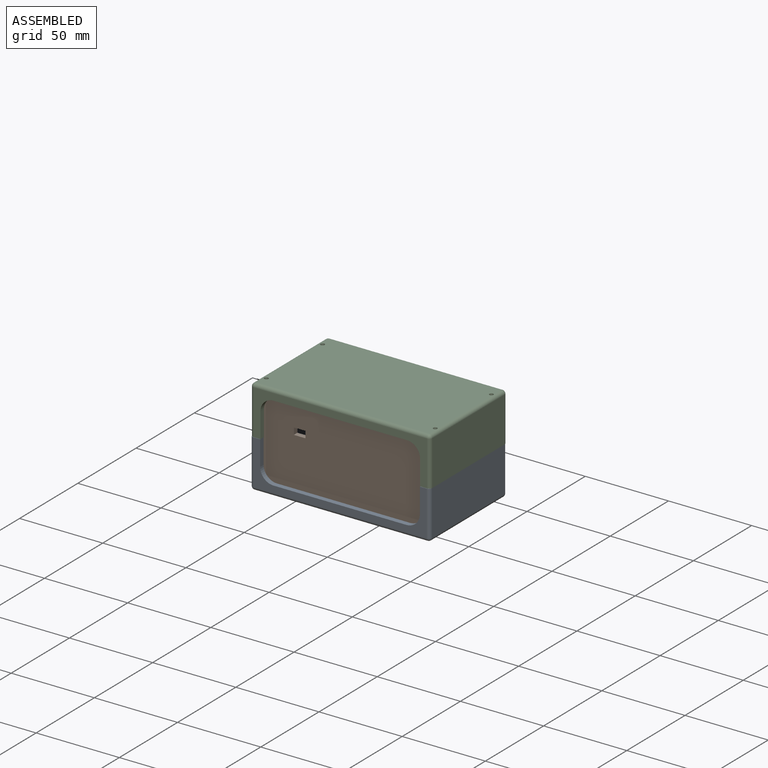
[diagram: assembled view]
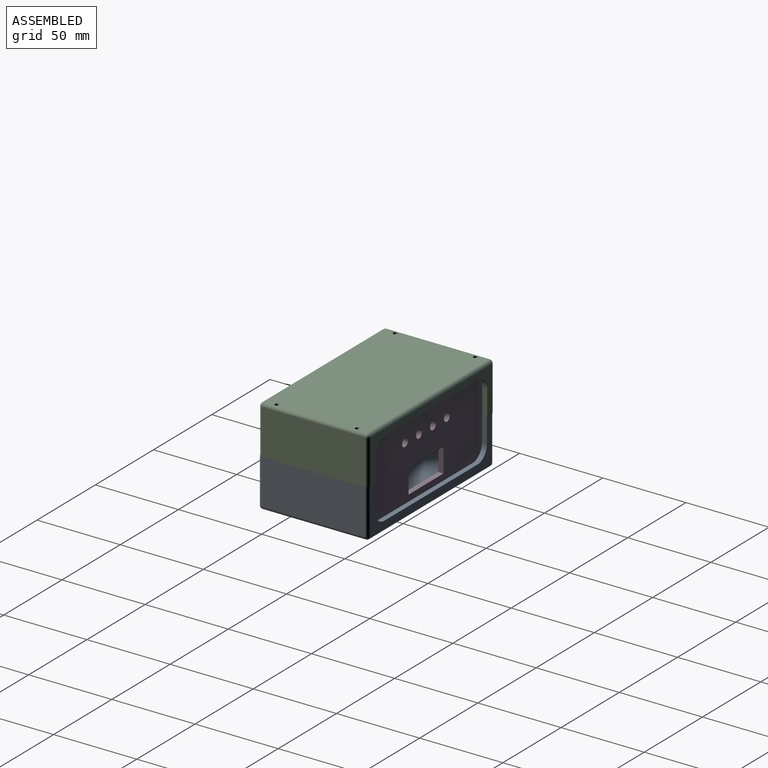
[diagram: assembled view, second angle]
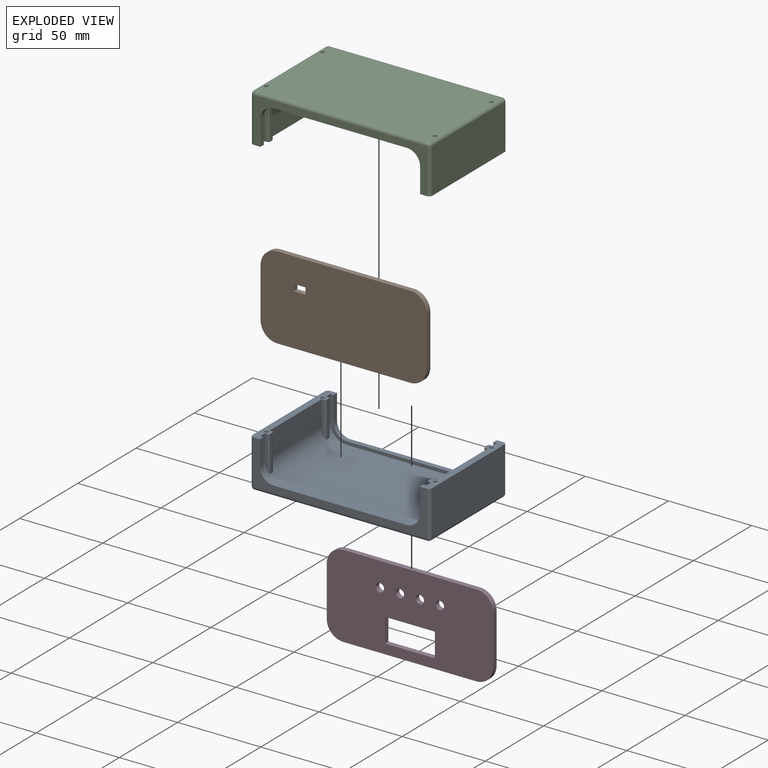
[diagram: exploded view]
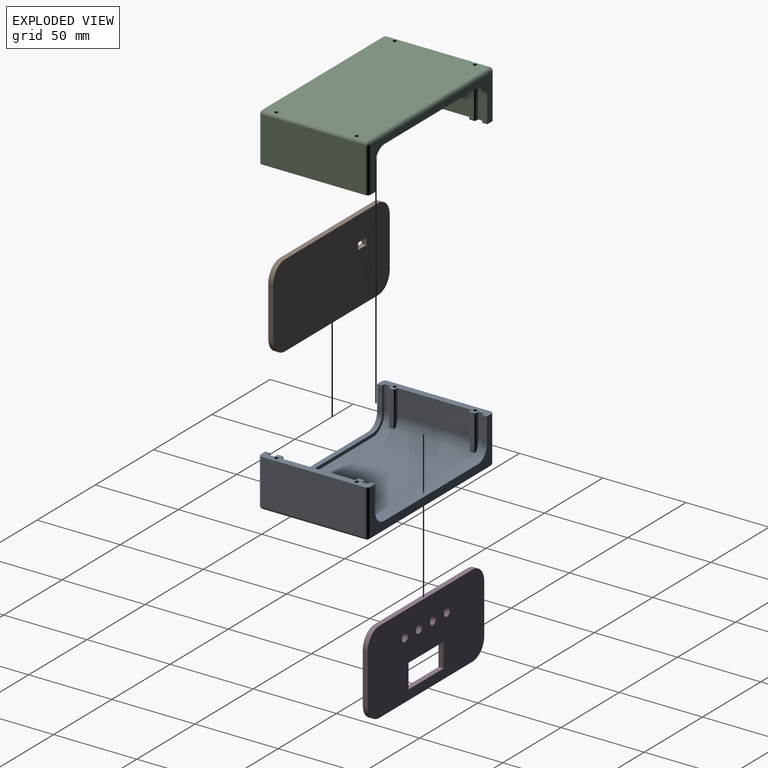
[diagram: exploded view, second angle]
ASSEMBLY  parts=4 mates=6
PART A: 64 faces, bbox 108x66x29 mm
  f0: cylinder r=10mm len=60mm, axis (0,1,0), area 886mm2, adj f1,f2,f8,f9,f14,f21,f38,f39
  f1: plane 15x3.52mm, normal (-1,0,0), area 52.8mm2, adj f0,f10,f14,f43
  f2: plane 44.5x15mm, normal (-1,0,0), area 667.5mm2, adj f0,f10,f41,f47
  f3: plane 15x3.98mm, normal (1,0,0), area 59.7mm2, adj f5,f7,f21,f33
  f4: plane 44.5x15mm, normal (1,0,0), area 667.5mm2, adj f5,f7,f28,f34
  f5: cylinder r=10mm len=60mm, axis (0,1,0), area 886mm2, adj f3,f4,f6,f8,f14,f21,f28,f29
  f6: plane 15x3.52mm, normal (1,0,0), area 52.8mm2, adj f5,f7,f14,f29
  f7: plane 66x6.5mm, normal (0,0,-1), area 284.4mm2, adj f3,f4,f6,f13,f14,f15,f20,f21
  f8: plane 80x60mm, normal (0,0,-1), area 4800mm2, adj f0,f5,f14,f21
  f9: plane 15x3.98mm, normal (-1,0,0), area 59.7mm2, adj f0,f10,f21,f42
  f10: plane 66x6.5mm, normal (0,0,-1), area 284.4mm2, adj f1,f2,f9,f11,f14,f19,f20,f21
  f11: plane 62x27mm, normal (1,0,0), area 1674mm2, adj f10,f54,f60,f63
  f12: plane 104x62mm, normal (0,0,1), area 6430.1mm2, adj f48,f49,f50,f51,f55,f56,f60,f61
  f13: plane 62x27mm, normal (-1,0,0), area 1674mm2, adj f7,f52,f56,f57
  f14: plane 100x25mm, normal (0,1,0), area 276.5mm2, adj f0,f1,f5,f6,f7,f8,f10,f15
  f15: plane 15x3mm, normal (1,0,0), area 45mm2, adj f7,f14,f16,f20
  f16: cylinder r=8mm len=8mm, axis (0,1,0), area 37.7mm2, adj f14,f15,f17,f20
  f17: plane 80x3mm, normal (0,0,-1), area 240mm2, adj f14,f16,f18,f20
  f18: cylinder r=8mm len=8mm, axis (0,1,0), area 37.7mm2, adj f14,f17,f19,f20
  f19: plane 15x3mm, normal (-1,0,0), area 45mm2, adj f10,f14,f18,f20
  f20: plane 104x27mm, normal (0,-1,0), area 627.5mm2, adj f7,f10,f15,f16,f17,f18,f19,f52
  f21: plane 100x25mm, normal (0,-1,0), area 276.5mm2, adj f0,f3,f5,f7,f8,f9,f10,f22
  f22: plane 15x3mm, normal (-1,0,0), area 45mm2, adj f10,f21,f23,f27
  f23: cylinder r=8mm len=8mm, axis (0,-1,0), area 37.7mm2, adj f21,f22,f24,f27
  f24: plane 80x3mm, normal (0,0,-1), area 240mm2, adj f21,f23,f25,f27
  f25: cylinder r=8mm len=8mm, axis (0,-1,0), area 37.7mm2, adj f21,f24,f26,f27
  f26: plane 15x3mm, normal (1,0,0), area 45mm2, adj f7,f21,f25,f27
  f27: plane 104x27mm, normal (0,1,0), area 627.5mm2, adj f7,f10,f22,f23,f24,f25,f26,f57
  f28: plane 20.27x1.5mm, normal (0,1,0), area 27.9mm2, adj f4,f5,f7,f30
  f29: plane 20.27x1.5mm, normal (0,-1,0), area 27.9mm2, adj f5,f6,f7,f32
  f30: cylinder r=1mm len=21.61mm, axis (0,0,-1), area 33.2mm2, adj f5,f7,f28,f31
  f31: plane 21.61x2mm, normal (1,0,0), area 43.2mm2, adj f5,f7,f30,f32
  f32: cylinder r=1mm len=21.61mm, axis (0,0,-1), area 33.2mm2, adj f5,f7,f29,f31
  f33: plane 20.27x1.5mm, normal (0,1,0), area 27.9mm2, adj f3,f5,f7,f35
  f34: plane 20.27x1.5mm, normal (0,-1,0), area 27.9mm2, adj f4,f5,f7,f37
  f35: cylinder r=1mm len=21.61mm, axis (0,0,-1), area 33.2mm2, adj f5,f7,f33,f36
  f36: plane 21.61x2mm, normal (1,0,0), area 43.2mm2, adj f5,f7,f35,f37
  f37: cylinder r=1mm len=21.61mm, axis (0,0,-1), area 33.2mm2, adj f5,f7,f34,f36
  f38: cylinder r=1mm len=21.61mm, axis (0,0,-1), area 33.2mm2, adj f0,f10,f39,f41
  f39: plane 21.61x2mm, normal (-1,0,0), area 43.2mm2, adj f0,f10,f38,f40
  f40: cylinder r=1mm len=21.61mm, axis (0,0,-1), area 33.2mm2, adj f0,f10,f39,f42
  f41: plane 20.27x1.5mm, normal (0,-1,0), area 27.9mm2, adj f0,f2,f10,f38
  f42: plane 20.27x1.5mm, normal (0,1,0), area 27.9mm2, adj f0,f9,f10,f40
  f43: plane 20.27x1.5mm, normal (0,-1,0), area 27.9mm2, adj f0,f1,f10,f44
  f44: cylinder r=1mm len=21.61mm, axis (0,0,-1), area 33.2mm2, adj f0,f10,f43,f45
  f45: plane 21.61x2mm, normal (-1,0,0), area 43.2mm2, adj f0,f10,f44,f46
  f46: cylinder r=1mm len=21.61mm, axis (0,0,-1), area 33.2mm2, adj f0,f10,f45,f47
  f47: plane 20.27x1.5mm, normal (0,1,0), area 27.9mm2, adj f0,f2,f10,f46
  f48: cylinder r=1.2mm len=29mm, axis (0,0,-1), area 218.7mm2, adj f7,f12
  f49: cylinder r=1.2mm len=29mm, axis (0,0,-1), area 218.7mm2, adj f7,f12
  f50: cylinder r=1.2mm len=29mm, axis (0,0,-1), area 218.7mm2, adj f10,f12,f60
  f51: cylinder r=1.2mm len=29mm, axis (0,0,-1), area 218.7mm2, adj f10,f12,f60
  f52: cylinder r=2mm len=27mm, axis (0,0,1), area 84.8mm2, adj f7,f13,f20,f53
  f53: sphere r=2mm, area 6.3mm2, adj f52,f55,f56
  f54: cylinder r=2mm len=27mm, axis (0,0,-1), area 84.8mm2, adj f10,f11,f20,f58
  f55: cylinder r=2mm len=104mm, axis (1,0,0), area 326.7mm2, adj f12,f20,f53,f58
  f56: cylinder r=2mm len=62mm, axis (0,1,0), area 194.8mm2, adj f12,f13,f53,f59
  f57: cylinder r=2mm len=27mm, axis (0,0,1), area 84.8mm2, adj f7,f13,f27,f59
  f58: sphere r=2mm, area 6.3mm2, adj f54,f55,f60
  f59: sphere r=2mm, area 6.3mm2, adj f56,f57,f61
  f60: cylinder r=2mm len=62mm, axis (0,-1,0), area 194.6mm2, adj f11,f12,f50,f51,f58,f62
  f61: cylinder r=2mm len=104mm, axis (1,0,0), area 326.7mm2, adj f12,f27,f59,f62
  f62: sphere r=2mm, area 6.3mm2, adj f60,f61,f63
  f63: cylinder r=2mm len=27mm, axis (0,0,-1), area 84.8mm2, adj f10,f11,f27,f62
PART B: 14 faces, bbox 100x3x50 mm
  f0: plane 100x50mm, normal (0,-1,0), area 4886.2mm2, adj f2,f3,f4,f5,f6,f7,f8,f9
  f1: plane 100x50mm, normal (0,1,0), area 4886.2mm2, adj f2,f3,f4,f5,f6,f7,f8,f9
  f2: plane 80x3mm, normal (0,0,1), area 240mm2, adj f0,f1,f3,f9
  f3: cylinder r=10mm len=10mm, axis (0,1,0), area 47.1mm2, adj f0,f1,f2,f4
  f4: plane 30x3mm, normal (-1,0,0), area 90mm2, adj f0,f1,f3,f5
  f5: cylinder r=10mm len=10mm, axis (0,1,0), area 47.1mm2, adj f0,f1,f4,f6
  f6: plane 80x3mm, normal (0,0,-1), area 240mm2, adj f0,f1,f5,f7
  f7: cylinder r=10mm len=10mm, axis (0,1,0), area 47.1mm2, adj f0,f1,f6,f8
  f8: plane 30x3mm, normal (1,0,0), area 90mm2, adj f0,f1,f7,f9
  f9: cylinder r=10mm len=10mm, axis (0,1,0), area 47.1mm2, adj f0,f1,f2,f8
  f10: plane 7x3mm, normal (0,0,-1), area 21mm2, adj f0,f1,f11,f13
  f11: plane 4x3mm, normal (1,0,0), area 12mm2, adj f0,f1,f10,f12
  f12: plane 7x3mm, normal (0,0,1), area 21mm2, adj f0,f1,f11,f13
  f13: plane 4x3mm, normal (-1,0,0), area 12mm2, adj f0,f1,f10,f12
PART C: same geometry as A
PART D: 18 faces, bbox 100x3x50 mm
  f0: plane 30x3mm, normal (1,0,0), area 90mm2, adj f1,f15,f16,f17
  f1: cylinder r=10mm len=10mm, axis (0,1,0), area 47.1mm2, adj f0,f2,f16,f17
  f2: plane 80x3mm, normal (0,0,1), area 240mm2, adj f1,f3,f16,f17
  f3: cylinder r=10mm len=10mm, axis (0,1,0), area 47.1mm2, adj f2,f4,f16,f17
  f4: plane 30x3mm, normal (-1,0,0), area 90mm2, adj f3,f5,f16,f17
  f5: cylinder r=10mm len=10mm, axis (0,1,0), area 47.1mm2, adj f4,f6,f16,f17
  f6: plane 80x3mm, normal (0,0,-1), area 240mm2, adj f5,f15,f16,f17
  f7: plane 30x3mm, normal (0,0,-1), area 90mm2, adj f8,f10,f16,f17
  f8: plane 14.5x3mm, normal (-1,0,0), area 43.5mm2, adj f7,f9,f16,f17
  f9: plane 30x3mm, normal (0,0,1), area 90mm2, adj f8,f10,f16,f17
  f10: plane 14.5x3mm, normal (1,0,0), area 43.5mm2, adj f7,f9,f16,f17
  f11: cylinder r=2.5mm len=5mm, axis (0,1,0), area 47.1mm2, adj f16,f17
  f12: cylinder r=2.5mm len=5mm, axis (0,1,0), area 47.1mm2, adj f16,f17
  f13: cylinder r=2.5mm len=5mm, axis (0,1,0), area 47.1mm2, adj f16,f17
  f14: cylinder r=2.5mm len=5mm, axis (0,1,0), area 47.1mm2, adj f16,f17
  f15: cylinder r=10mm len=10mm, axis (0,1,0), area 47.1mm2, adj f0,f6,f16,f17
  f16: plane 100x50mm, normal (0,-1,0), area 4400.6mm2, adj f0,f1,f2,f3,f4,f5,f6,f7
  f17: plane 100x50mm, normal (0,1,0), area 4400.6mm2, adj f0,f1,f2,f3,f4,f5,f6,f7
PLACE A rot(axis=(1,0,0),180deg) t=(5.75,12.85,45.03)mm
PLACE B rot(axis=(1,0,0),180deg) t=(5.75,13.06,70.03)mm
PLACE C t=(5.75,73.06,45.03)mm
PLACE D rot(axis=(1,0,0),180deg) t=(5.75,69.85,70.03)mm
MATE planar C.f9 <-> D.f0  axis (-1,0,0) through (105.75,71.07,52.53)mm
MATE planar C.f10 <-> A.f10  axis (0,0,-1) through (107.43,43.05,45.03)mm
MATE planar B.f2 <-> A.f8  axis (0,0,-1) through (55.75,14.56,20.03)mm
MATE planar A.f14 <-> D.f16  axis (0,-1,0) through (55.75,72.85,25.27)mm
MATE planar C.f14 <-> B.f1  axis (0,1,0) through (55.75,13.06,64.78)mm
MATE planar A.f8 <-> D.f2  axis (0,0,1) through (55.75,42.85,20.03)mm
